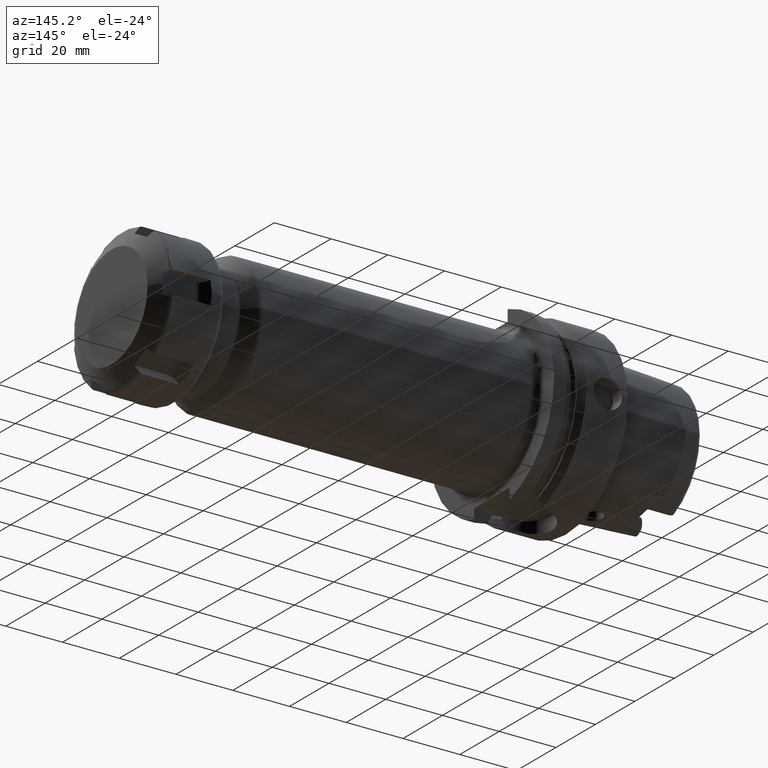
[diagram: clean part render]
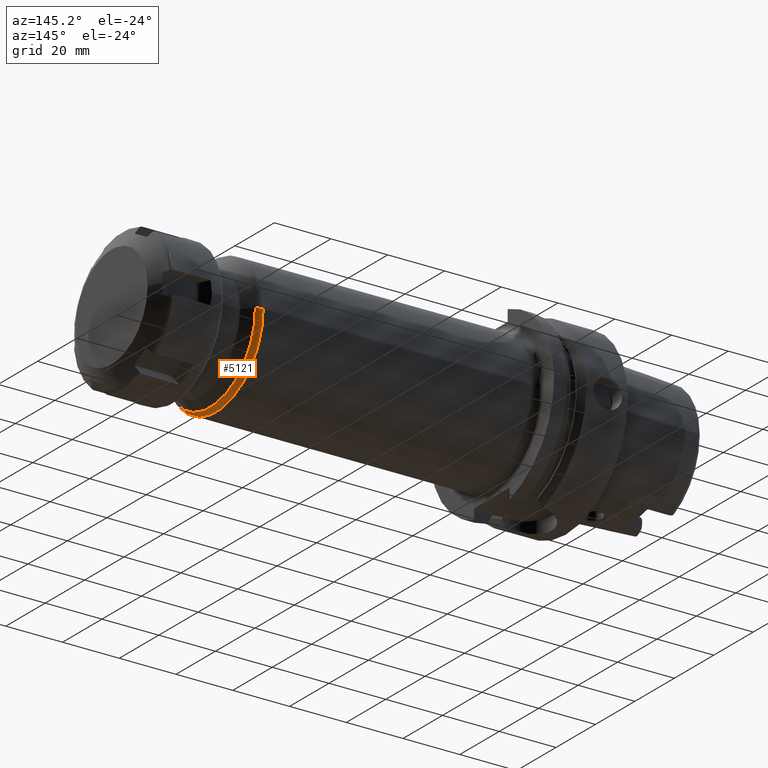
[diagram: same view with one face highlighted and labeled with its STEP entity id]
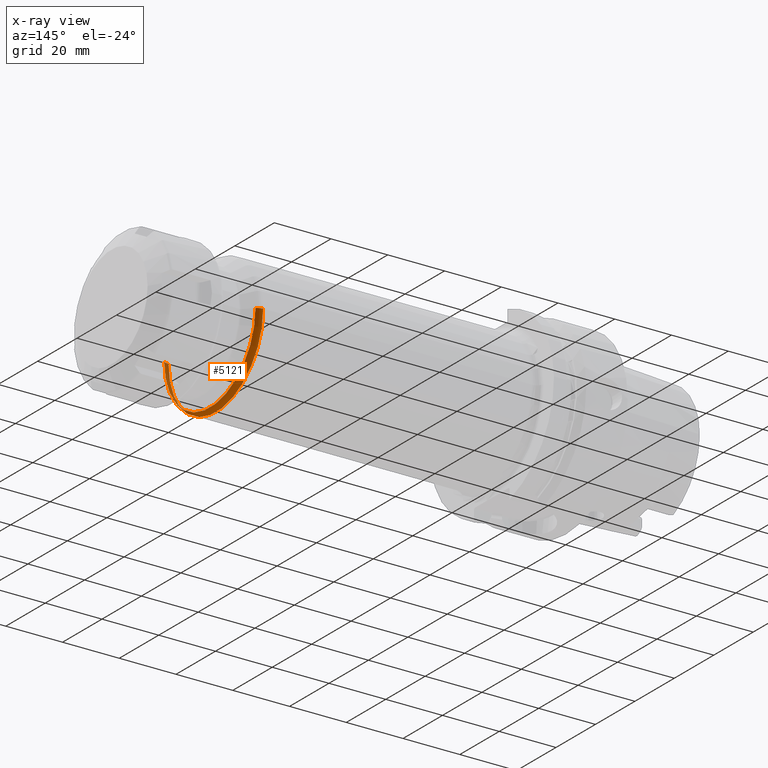
[diagram: x-ray of the same camera — body ghosted, the highlighted face saturated]
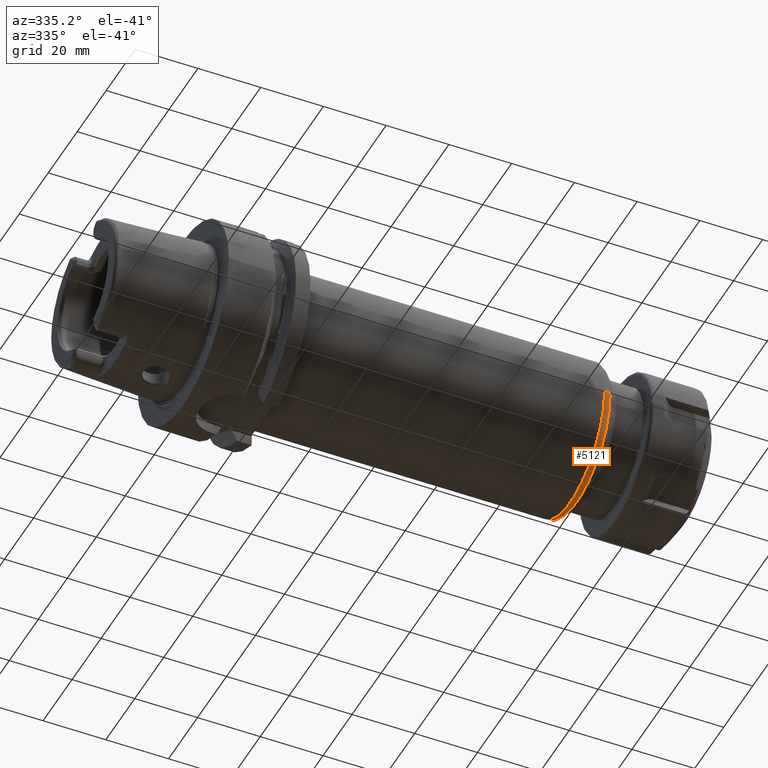
[diagram: same view with one face highlighted and labeled with its STEP entity id]
A machine part, auxiliary view. The second image highlights one B-rep face of the part: STEP entity #5121.
The next image is the same camera in x-ray: the body ghosted, the highlighted face saturated — about 11% of this face is hidden behind the body in this view.
A second angle (auxiliary view) of the same face is appended — the face is thin or edge-on in the first view.
In plain terms, the highlighted toroidal blend (fillet) surface has major radius 21 mm and minor (blend) radius 3 mm.
Its self-contained STEP definition (entity closure, byte-faithful):
#1839=CARTESIAN_POINT('',(1.232573593129E2,-2.1E1,-2.536471033210E-12));
#1840=DIRECTION('',(0.E0,-1.207848925044E-13,1.E0));
#1841=DIRECTION('',(0.E0,-1.E0,-1.207848925044E-13));
#1842=AXIS2_PLACEMENT_3D('',#1839,#1840,#1841);
#1844=CARTESIAN_POINT('',(1.232573593129E2,2.1E1,2.539204957408E-12));
#1845=DIRECTION('',(0.E0,1.209145630843E-13,-1.E0));
#1846=DIRECTION('',(0.E0,1.E0,1.209145630843E-13));
#1847=AXIS2_PLACEMENT_3D('',#1844,#1845,#1846);
#1849=CARTESIAN_POINT('',(1.232573593129E2,0.E0,0.E0));
#1850=DIRECTION('',(-1.E0,0.E0,0.E0));
#1851=DIRECTION('',(0.E0,1.E0,0.E0));
#1852=AXIS2_PLACEMENT_3D('',#1849,#1850,#1851);
#1862=CARTESIAN_POINT('',(1.253786796564E2,0.E0,0.E0));
#1863=DIRECTION('',(-1.E0,0.E0,0.E0));
#1864=DIRECTION('',(0.E0,1.E0,0.E0));
#1865=AXIS2_PLACEMENT_3D('',#1862,#1863,#1864);
#3179=CARTESIAN_POINT('',(1.232573593129E2,2.4E1,0.E0));
#3180=CARTESIAN_POINT('',(1.232573593129E2,-2.4E1,0.E0));
#3181=VERTEX_POINT('',#3179);
#3182=VERTEX_POINT('',#3180);
#3183=CARTESIAN_POINT('',(1.253786796564E2,2.312132034356E1,0.E0));
#3184=CARTESIAN_POINT('',(1.253786796564E2,-2.312132034356E1,0.E0));
#3185=VERTEX_POINT('',#3183);
#3186=VERTEX_POINT('',#3184);
#5108=CARTESIAN_POINT('',(1.232573593129E2,0.E0,0.E0));
#5109=DIRECTION('',(1.E0,0.E0,0.E0));
#5110=DIRECTION('',(0.E0,9.999952560337E-1,3.080245129131E-3));
#5111=AXIS2_PLACEMENT_3D('',#5108,#5109,#5110);
#5112=TOROIDAL_SURFACE('',#5111,2.1E1,3.E0);
#5114=ORIENTED_EDGE('',*,*,#5113,.T.);
#5115=ORIENTED_EDGE('',*,*,#5103,.T.);
#5117=ORIENTED_EDGE('',*,*,#5116,.F.);
#5118=ORIENTED_EDGE('',*,*,#5099,.F.);
#5119=EDGE_LOOP('',(#5114,#5115,#5117,#5118));
#5120=FACE_OUTER_BOUND('',#5119,.F.);
#5121=ADVANCED_FACE('',(#5120),#5112,.T.);
#1843=CIRCLE('',#1842,3.E0);
#1848=CIRCLE('',#1847,3.E0);
#1853=CIRCLE('',#1852,2.4E1);
#1866=CIRCLE('',#1865,2.312132034356E1);
#5099=EDGE_CURVE('',#3181,#3185,#1848,.T.);
#5103=EDGE_CURVE('',#3182,#3186,#1843,.T.);
#5113=EDGE_CURVE('',#3181,#3182,#1853,.T.);
#5116=EDGE_CURVE('',#3185,#3186,#1866,.T.);